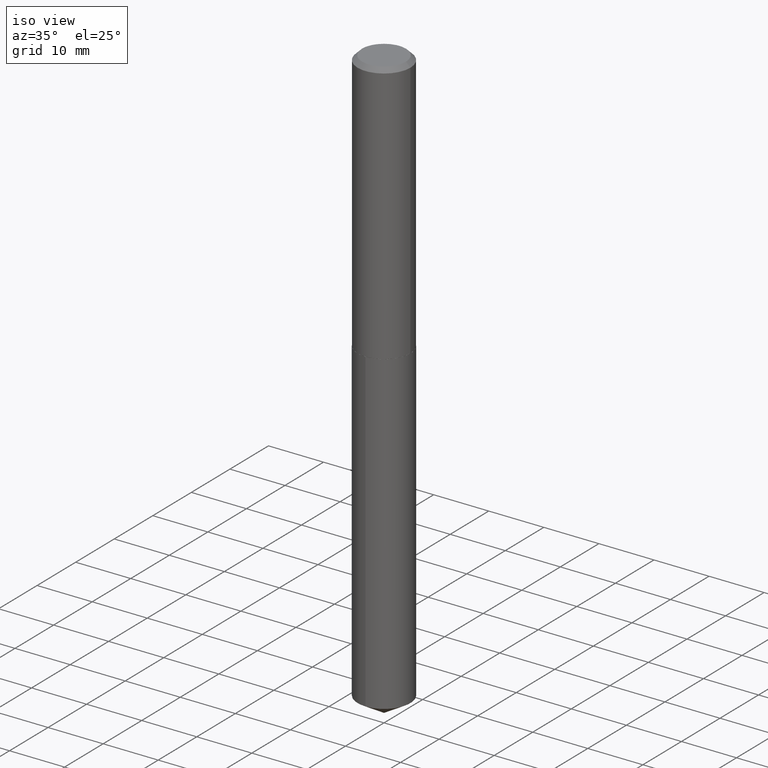
[diagram: clean part render]
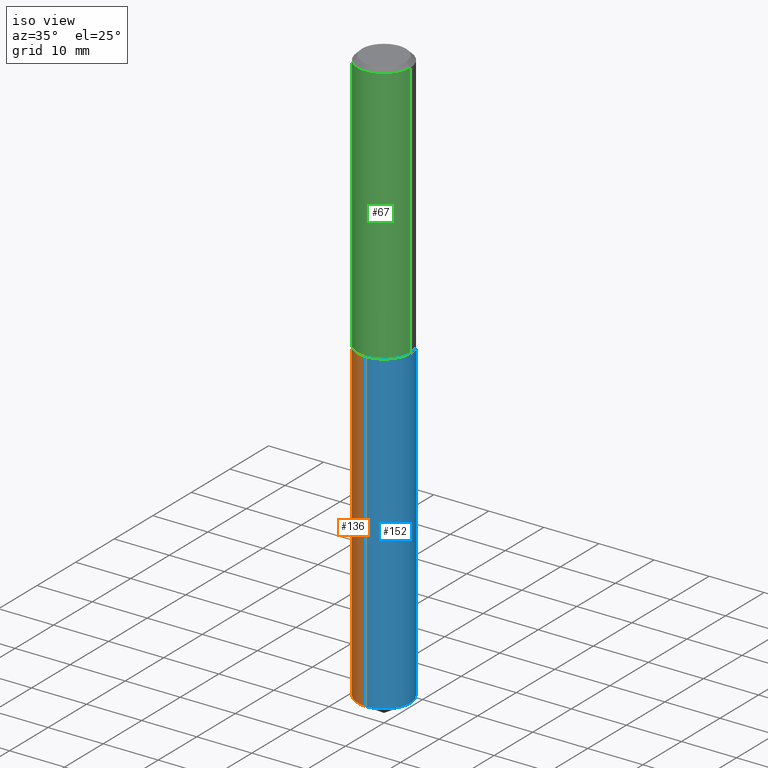
[diagram: same view with three faces highlighted in distinct colors, each labeled with its STEP entity id]
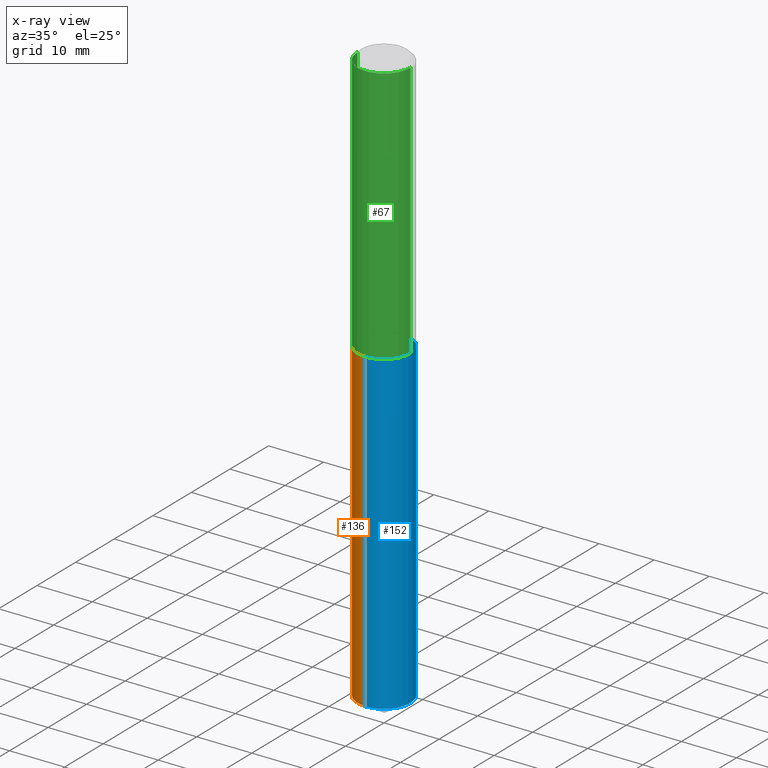
[diagram: x-ray of the same camera — body ghosted, the three highlighted faces saturated]
A machine part, iso view with three faces highlighted in distinct colors.
The next image is the same camera in x-ray (body ghosted, the three faces saturated) — at least one of them is partly hidden behind the body in this view.
Their STEP definitions:

[orange] entity #136 — the highlighted cylindrical surface (edge-blend (fillet) strip) has radius 4.7879 mm, axis along (-0, 0, 1).
#26 = DIRECTION ( 'NONE',  ( -6.982962677686266711E-15, -1.000000000000000000, 2.898512460121233908E-15 ) ) ;
#28 = DIRECTION ( 'NONE',  ( -6.982962677686266711E-15, -1.000000000000000000, 2.898512460121233908E-15 ) ) ;
#31 = DIRECTION ( 'NONE',  ( -2.445480100698068853E-29, 3.491465164457782764E-15, 1.000000000000000000 ) ) ;
#43 = VERTEX_POINT ( 'NONE', #246 ) ;
#60 = DIRECTION ( 'NONE',  ( -2.445480100698068853E-29, 3.491465164457782764E-15, 1.000000000000000000 ) ) ;
#73 = DIRECTION ( 'NONE',  ( -2.445480100698068853E-29, 3.491465164457782764E-15, 1.000000000000000000 ) ) ;
#82 = ORIENTED_EDGE ( 'NONE', *, *, #319, .F. ) ;
#83 = VECTOR ( 'NONE', #269, 39.37007874015748143 ) ;
#131 = EDGE_CURVE ( 'NONE', #43, #352, #215, .T. ) ;
#136 = ADVANCED_FACE ( 'NONE', ( #330 ), #336, .T. ) ;
#153 = ORIENTED_EDGE ( 'NONE', *, *, #377, .F. ) ;
#160 = VERTEX_POINT ( 'NONE', #251 ) ;
#161 = CARTESIAN_POINT ( 'NONE',  ( 4.590144949209500083E-29, -6.553510473008582355E-15, -1.876999999999999336 ) ) ;
#169 = LINE ( 'NONE', #221, #309 ) ;
#171 = CARTESIAN_POINT ( 'NONE',  ( -1.316288464743815466E-15, -0.1885000000000065790, -1.876999999999998892 ) ) ;
#178 = EDGE_LOOP ( 'NONE', ( #82, #378, #288, #153 ) ) ;
#200 = AXIS2_PLACEMENT_3D ( 'NONE', #370, #73, #344 ) ;
#215 = CIRCLE ( 'NONE', #234, 0.1885000000000000286 ) ;
#220 = CARTESIAN_POINT ( 'NONE',  ( 1.011628870664295292E-28, -1.444330618934138545E-14, -4.136737773313305055 ) ) ;
#221 = CARTESIAN_POINT ( 'NONE',  ( 1.339373056907834611E-15, 0.1884999999999934506, -1.877000000000000002 ) ) ;
#234 = AXIS2_PLACEMENT_3D ( 'NONE', #220, #60, #28 ) ;
#241 = AXIS2_PLACEMENT_3D ( 'NONE', #161, #300, #26 ) ;
#245 = VERTEX_POINT ( 'NONE', #171 ) ;
#246 = CARTESIAN_POINT ( 'NONE',  ( 1.339373056907889436E-15, 0.1884999999999855125, -4.136737773313305944 ) ) ;
#251 = CARTESIAN_POINT ( 'NONE',  ( 1.339373056907890225E-15, 0.1884999999999934506, -1.877000000000000002 ) ) ;
#252 = LINE ( 'NONE', #332, #83 ) ;
#269 = DIRECTION ( 'NONE',  ( -2.445480100698068853E-29, 3.491465164457782764E-15, 1.000000000000000000 ) ) ;
#288 = ORIENTED_EDGE ( 'NONE', *, *, #323, .T. ) ;
#300 = DIRECTION ( 'NONE',  ( -2.445480100698068853E-29, 3.491465164457782764E-15, 1.000000000000000000 ) ) ;
#309 = VECTOR ( 'NONE', #31, 39.37007874015748143 ) ;
#319 = EDGE_CURVE ( 'NONE', #43, #160, #169, .T. ) ;
#323 = EDGE_CURVE ( 'NONE', #352, #245, #252, .T. ) ;
#330 = FACE_OUTER_BOUND ( 'NONE', #178, .T. ) ;
#331 = CIRCLE ( 'NONE', #200, 0.1885000000000000286 ) ;
#332 = CARTESIAN_POINT ( 'NONE',  ( -1.316288464743815466E-15, -0.1885000000000065790, -1.876999999999998892 ) ) ;
#336 = CYLINDRICAL_SURFACE ( 'NONE', #241, 0.1885000000000000286 ) ;
#344 = DIRECTION ( 'NONE',  ( -6.982962677686266711E-15, -1.000000000000000000, 2.898512460121233908E-15 ) ) ;
#352 = VERTEX_POINT ( 'NONE', #388 ) ;
#370 = CARTESIAN_POINT ( 'NONE',  ( 4.590144949209500083E-29, -6.553510473008582355E-15, -1.876999999999999336 ) ) ;
#377 = EDGE_CURVE ( 'NONE', #160, #245, #331, .T. ) ;
#378 = ORIENTED_EDGE ( 'NONE', *, *, #131, .T. ) ;
#388 = CARTESIAN_POINT ( 'NONE',  ( -1.316288464743759851E-15, -0.1885000000000144338, -4.136737773313304167 ) ) ;

[blue] entity #152 — the highlighted cylindrical surface (edge-blend (fillet) strip) has radius 4.7879 mm, axis along (-0, 0, 1).
#2 = DIRECTION ( 'NONE',  ( -2.445480100698068853E-29, 3.491465164457782764E-15, 1.000000000000000000 ) ) ;
#9 = ORIENTED_EDGE ( 'NONE', *, *, #323, .F. ) ;
#31 = DIRECTION ( 'NONE',  ( -2.445480100698068853E-29, 3.491465164457782764E-15, 1.000000000000000000 ) ) ;
#43 = VERTEX_POINT ( 'NONE', #246 ) ;
#46 = ORIENTED_EDGE ( 'NONE', *, *, #319, .T. ) ;
#57 = FACE_OUTER_BOUND ( 'NONE', #293, .T. ) ;
#83 = VECTOR ( 'NONE', #269, 39.37007874015748143 ) ;
#122 = EDGE_CURVE ( 'NONE', #352, #43, #255, .T. ) ;
#123 = ORIENTED_EDGE ( 'NONE', *, *, #214, .F. ) ;
#124 = AXIS2_PLACEMENT_3D ( 'NONE', #236, #205, #231 ) ;
#129 = DIRECTION ( 'NONE',  ( -6.982962677686266711E-15, -1.000000000000000000, 2.898512460121233908E-15 ) ) ;
#152 = ADVANCED_FACE ( 'NONE', ( #57 ), #297, .T. ) ;
#160 = VERTEX_POINT ( 'NONE', #251 ) ;
#162 = DIRECTION ( 'NONE',  ( -6.982962677686266711E-15, -1.000000000000000000, 2.898512460121233908E-15 ) ) ;
#169 = LINE ( 'NONE', #221, #309 ) ;
#171 = CARTESIAN_POINT ( 'NONE',  ( -1.316288464743815466E-15, -0.1885000000000065790, -1.876999999999998892 ) ) ;
#185 = CIRCLE ( 'NONE', #124, 0.1885000000000000286 ) ;
#187 = ORIENTED_EDGE ( 'NONE', *, *, #122, .T. ) ;
#197 = AXIS2_PLACEMENT_3D ( 'NONE', #272, #2, #129 ) ;
#205 = DIRECTION ( 'NONE',  ( -2.445480100698068853E-29, 3.491465164457782764E-15, 1.000000000000000000 ) ) ;
#214 = EDGE_CURVE ( 'NONE', #245, #160, #185, .T. ) ;
#221 = CARTESIAN_POINT ( 'NONE',  ( 1.339373056907834611E-15, 0.1884999999999934506, -1.877000000000000002 ) ) ;
#231 = DIRECTION ( 'NONE',  ( -6.982962677686266711E-15, -1.000000000000000000, 2.898512460121233908E-15 ) ) ;
#236 = CARTESIAN_POINT ( 'NONE',  ( 4.590144949209500083E-29, -6.553510473008582355E-15, -1.876999999999999336 ) ) ;
#245 = VERTEX_POINT ( 'NONE', #171 ) ;
#246 = CARTESIAN_POINT ( 'NONE',  ( 1.339373056907889436E-15, 0.1884999999999855125, -4.136737773313305944 ) ) ;
#251 = CARTESIAN_POINT ( 'NONE',  ( 1.339373056907890225E-15, 0.1884999999999934506, -1.877000000000000002 ) ) ;
#252 = LINE ( 'NONE', #332, #83 ) ;
#255 = CIRCLE ( 'NONE', #372, 0.1885000000000000286 ) ;
#269 = DIRECTION ( 'NONE',  ( -2.445480100698068853E-29, 3.491465164457782764E-15, 1.000000000000000000 ) ) ;
#272 = CARTESIAN_POINT ( 'NONE',  ( 4.590144949209500083E-29, -6.553510473008582355E-15, -1.876999999999999336 ) ) ;
#275 = CARTESIAN_POINT ( 'NONE',  ( 1.011628870664295292E-28, -1.444330618934138545E-14, -4.136737773313305055 ) ) ;
#293 = EDGE_LOOP ( 'NONE', ( #187, #46, #123, #9 ) ) ;
#297 = CYLINDRICAL_SURFACE ( 'NONE', #197, 0.1885000000000000286 ) ;
#309 = VECTOR ( 'NONE', #31, 39.37007874015748143 ) ;
#319 = EDGE_CURVE ( 'NONE', #43, #160, #169, .T. ) ;
#323 = EDGE_CURVE ( 'NONE', #352, #245, #252, .T. ) ;
#332 = CARTESIAN_POINT ( 'NONE',  ( -1.316288464743815466E-15, -0.1885000000000065790, -1.876999999999998892 ) ) ;
#352 = VERTEX_POINT ( 'NONE', #388 ) ;
#355 = DIRECTION ( 'NONE',  ( -2.445480100698068853E-29, 3.491465164457782764E-15, 1.000000000000000000 ) ) ;
#372 = AXIS2_PLACEMENT_3D ( 'NONE', #275, #355, #162 ) ;
#388 = CARTESIAN_POINT ( 'NONE',  ( -1.316288464743759851E-15, -0.1885000000000144338, -4.136737773313304167 ) ) ;

[green] entity #67 — the highlighted cylindrical surface (edge-blend (fillet) strip) has radius 4.7879 mm, axis along (-0, 0, 1).
#6 = VERTEX_POINT ( 'NONE', #379 ) ;
#13 = DIRECTION ( 'NONE',  ( -2.445468806185136877E-29, 3.491481338843145188E-15, 1.000000000000000000 ) ) ;
#16 = ORIENTED_EDGE ( 'NONE', *, *, #261, .T. ) ;
#19 = ORIENTED_EDGE ( 'NONE', *, *, #375, .T. ) ;
#21 = AXIS2_PLACEMENT_3D ( 'NONE', #76, #211, #48 ) ;
#48 = DIRECTION ( 'NONE',  ( 1.000000000000000000, -6.982962677686266711E-15, 4.876176775795936353E-29 ) ) ;
#56 = VECTOR ( 'NONE', #106, 39.37007874015748143 ) ;
#67 = ADVANCED_FACE ( 'NONE', ( #351 ), #326, .T. ) ;
#71 = AXIS2_PLACEMENT_3D ( 'NONE', #104, #77, #239 ) ;
#76 = CARTESIAN_POINT ( 'NONE',  ( 0.000000000000000000, 0.000000000000000000, 0.000000000000000000 ) ) ;
#77 = DIRECTION ( 'NONE',  ( -2.445468806185136597E-29, 3.491481338843145583E-15, 1.000000000000000000 ) ) ;
#104 = CARTESIAN_POINT ( 'NONE',  ( 4.588922214806407281E-29, -6.551764732339160851E-15, -1.876499999999999613 ) ) ;
#106 = DIRECTION ( 'NONE',  ( -2.445468806185136877E-29, 3.491481338843145188E-15, 1.000000000000000000 ) ) ;
#107 = LINE ( 'NONE', #232, #191 ) ;
#112 = DIRECTION ( 'NONE',  ( -2.445468806185136597E-29, 3.491481338843145583E-15, 1.000000000000000000 ) ) ;
#121 = DIRECTION ( 'NONE',  ( 1.000000000000000000, -6.982962677686266711E-15, 0.000000000000000000 ) ) ;
#143 = CARTESIAN_POINT ( 'NONE',  ( 0.1885000000000002507, -7.868053197083023451E-15, -1.876499999999999613 ) ) ;
#156 = ORIENTED_EDGE ( 'NONE', *, *, #365, .F. ) ;
#191 = VECTOR ( 'NONE', #13, 39.37007874015748143 ) ;
#193 = CARTESIAN_POINT ( 'NONE',  ( -0.1885000000000002507, -5.212391675431369628E-15, -1.876499999999999613 ) ) ;
#211 = DIRECTION ( 'NONE',  ( -2.445468806185136597E-29, 3.491481338843145583E-15, 1.000000000000000000 ) ) ;
#230 = CARTESIAN_POINT ( 'NONE',  ( 0.1885000000000001119, -1.316288464743862009E-15, 9.191593222375345023E-30 ) ) ;
#232 = CARTESIAN_POINT ( 'NONE',  ( -0.1885000000000001119, 1.339373056907789646E-15, -9.272192645130503377E-30 ) ) ;
#239 = DIRECTION ( 'NONE',  ( 1.000000000000000000, -6.982962677686264344E-15, 0.000000000000000000 ) ) ;
#248 = VERTEX_POINT ( 'NONE', #143 ) ;
#261 = EDGE_CURVE ( 'NONE', #325, #248, #345, .T. ) ;
#264 = EDGE_CURVE ( 'NONE', #289, #6, #350, .T. ) ;
#265 = CARTESIAN_POINT ( 'NONE',  ( 7.642090019328608793E-31, -1.091087918388491130E-16, -0.03125000000000023592 ) ) ;
#274 = CARTESIAN_POINT ( 'NONE',  ( -0.1885000000000000286, -1.991063705181214936E-15, -0.03125000000000023592 ) ) ;
#277 = EDGE_LOOP ( 'NONE', ( #156, #16, #19, #374 ) ) ;
#289 = VERTEX_POINT ( 'NONE', #274 ) ;
#325 = VERTEX_POINT ( 'NONE', #193 ) ;
#326 = CYLINDRICAL_SURFACE ( 'NONE', #21, 0.1885000000000001119 ) ;
#343 = LINE ( 'NONE', #230, #56 ) ;
#345 = CIRCLE ( 'NONE', #71, 0.1885000000000002507 ) ;
#350 = CIRCLE ( 'NONE', #361, 0.1885000000000000286 ) ;
#351 = FACE_OUTER_BOUND ( 'NONE', #277, .T. ) ;
#361 = AXIS2_PLACEMENT_3D ( 'NONE', #265, #112, #121 ) ;
#365 = EDGE_CURVE ( 'NONE', #325, #289, #107, .T. ) ;
#374 = ORIENTED_EDGE ( 'NONE', *, *, #264, .F. ) ;
#375 = EDGE_CURVE ( 'NONE', #248, #6, #343, .T. ) ;
#379 = CARTESIAN_POINT ( 'NONE',  ( 0.1885000000000000286, -1.425397256582710518E-15, -0.03125000000000023592 ) ) ;